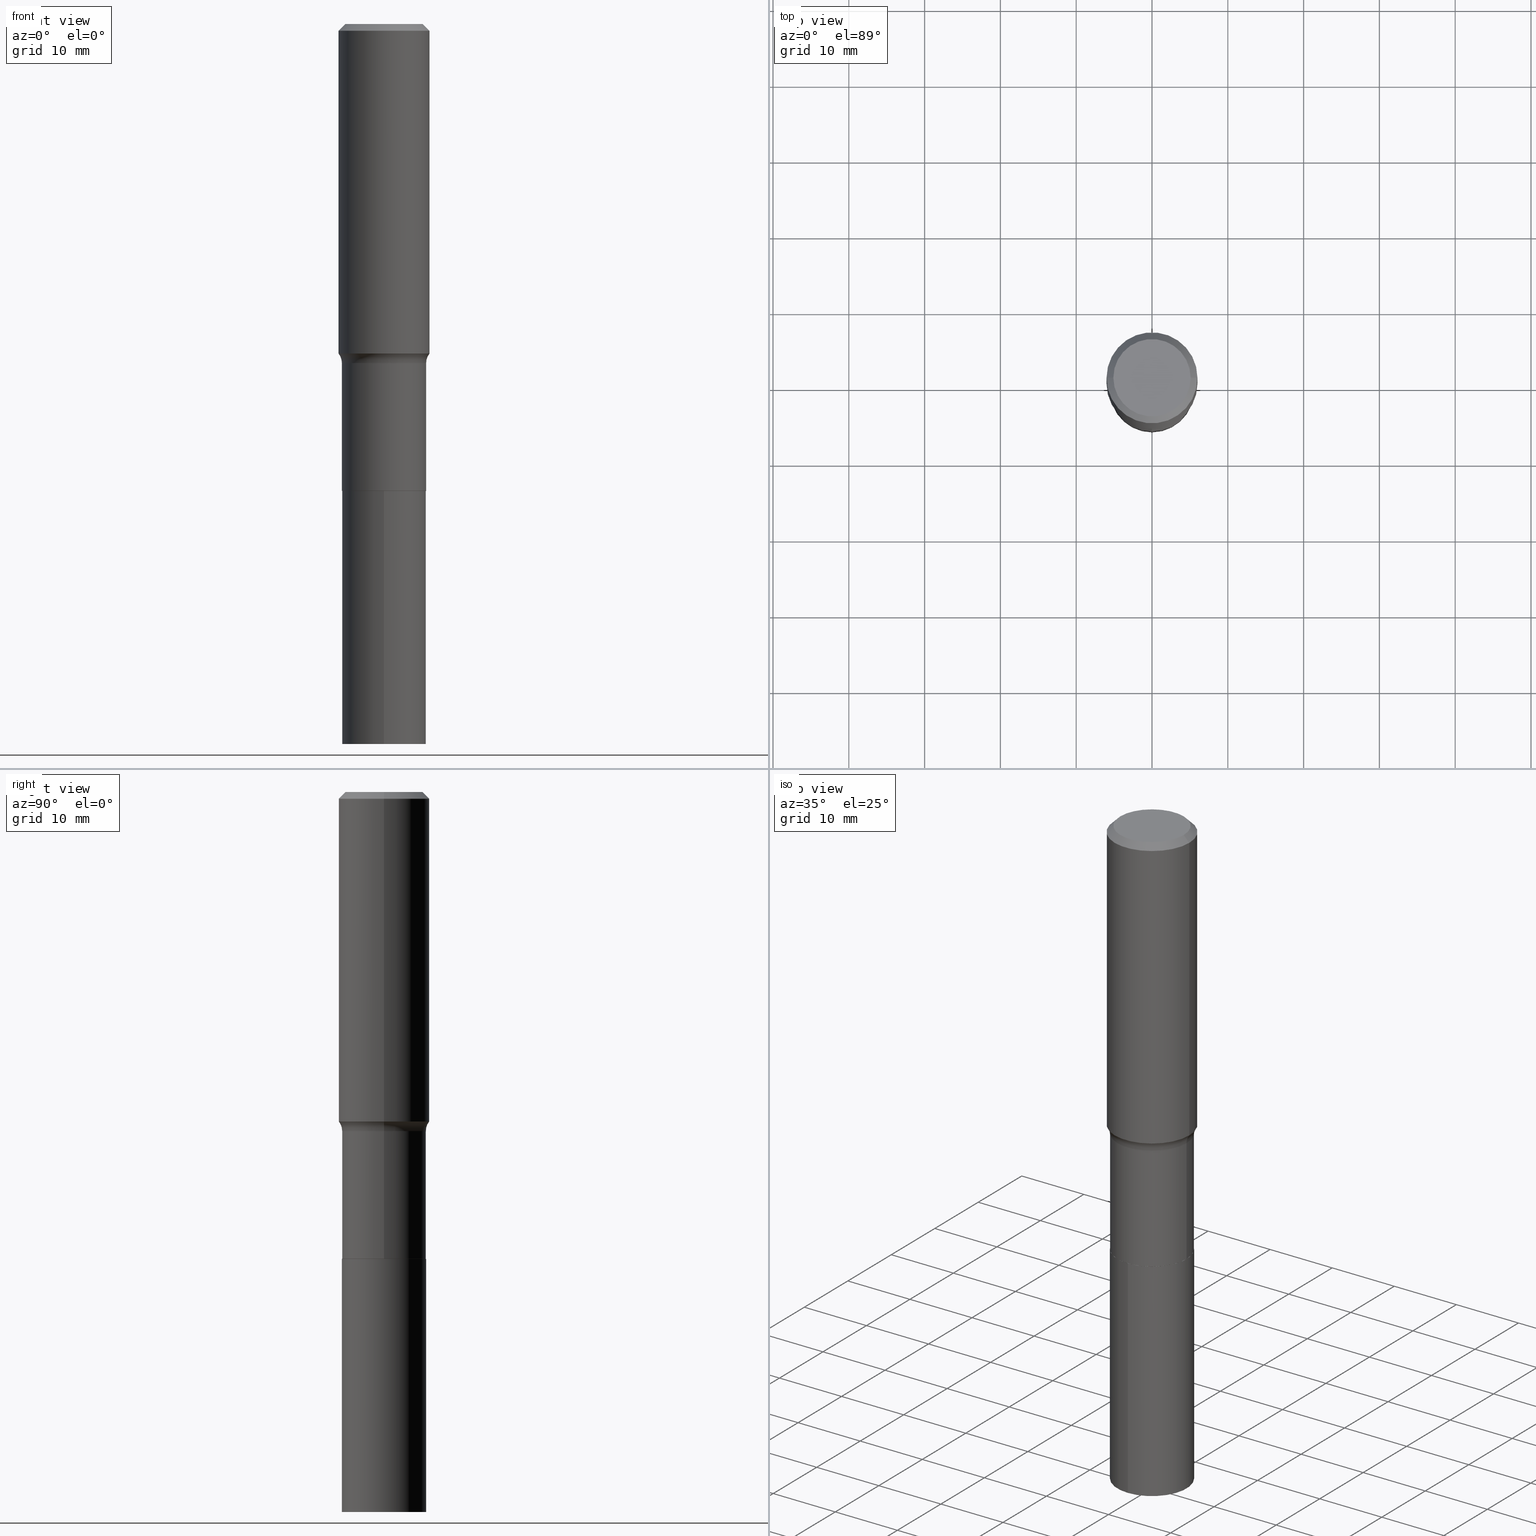
[diagram: canonical four-view strip — front | top / right | iso, engineering-drawing reading convention]
A machine part, canonical four-view strip (front | top / right | iso — engineering-drawing reading convention). The complete STEP part file that produces these views, byte-faithful:
ISO-10303-21;
HEADER;
FILE_DESCRIPTION (( 'STEP AP203' ),
    '1' );
FILE_NAME ('58841.STEP',
    '2024-04-19T14:44:43',
    ( '' ),
    ( '' ),
    'SwSTEP 2.0',
    'SolidWorks 2023',
    '' );
FILE_SCHEMA (( 'CONFIG_CONTROL_DESIGN' ));
ENDSEC;

DATA;
#1 = DIRECTION ( 'NONE',  ( -6.982962677686265922E-15, -1.000000000000000000, 3.491551947444624874E-15 ) ) ;
#2 = AXIS2_PLACEMENT_3D ( 'NONE', #101, #67, #145 ) ;
#3 = AXIS2_PLACEMENT_3D ( 'NONE', #266, #329, #264 ) ;
#4 = CARTESIAN_POINT ( 'NONE',  ( -0.2187500000000000278, 1.554312234475219354E-15, -1.076017050993260762E-29 ) ) ;
#5 = APPROVAL_PERSON_ORGANIZATION ( #61, #175, #429 ) ;
#6 = PRODUCT_RELATED_PRODUCT_CATEGORY ( 'detail', '', ( #165 ) ) ;
#7 = FACE_OUTER_BOUND ( 'NONE', #162, .T. ) ;
#8 = DATE_AND_TIME ( #14, #179 ) ;
#9 = CARTESIAN_POINT ( 'NONE',  ( 0.2187500000000000555, -9.993317888036847882E-15, -2.424700000000000522 ) ) ;
#10 = ORIENTED_EDGE ( 'NONE', *, *, #241, .T. ) ;
#11 = DIRECTION ( 'NONE',  ( -2.445468806185136597E-29, 3.491481338843145583E-15, 1.000000000000000000 ) ) ;
#12 = VECTOR ( 'NONE', #141, 39.37007874015748143 ) ;
#13 = DIRECTION ( 'NONE',  ( 1.000000000000000000, -6.982962677686266711E-15, 0.000000000000000000 ) ) ;
#14 = CALENDAR_DATE ( 2024, 19, 4 ) ;
#15 = ADVANCED_FACE ( 'NONE', ( #59 ), #364, .F. ) ;
#16 = DIRECTION ( 'NONE',  ( -2.445419500462251328E-29, 3.491551947444624874E-15, 1.000000000000000000 ) ) ;
#17 = DIRECTION ( 'NONE',  ( -1.000000000000000000, 7.105427357601001859E-15, 0.000000000000000000 ) ) ;
#18 = CIRCLE ( 'NONE', #52, 0.2361999999999999933 ) ;
#19 = CARTESIAN_POINT ( 'NONE',  ( 5.930750948760193592E-29, -8.467540542962398542E-15, -2.425200000000000244 ) ) ;
#20 = CC_DESIGN_PERSON_AND_ORGANIZATION_ASSIGNMENT ( #348, #181, ( #170 ) ) ;
#21 = ORIENTED_EDGE ( 'NONE', *, *, #251, .T. ) ;
#22 = ORIENTED_EDGE ( 'NONE', *, *, #218, .T. ) ;
#23 = ORIENTED_EDGE ( 'NONE', *, *, #276, .F. ) ;
#24 = VERTEX_POINT ( 'NONE', #403 ) ;
#25 = DIRECTION ( 'NONE',  ( -2.445468806185136597E-29, 3.491481338843145583E-15, 1.000000000000000000 ) ) ;
#26 = CYLINDRICAL_SURFACE ( 'NONE', #82, 0.2187500000000000278 ) ;
#27 = DIRECTION ( 'NONE',  ( 1.000000000000000000, -6.982962677686269077E-15, 0.000000000000000000 ) ) ;
#28 = AXIS2_PLACEMENT_3D ( 'NONE', #140, #285, #436 ) ;
#29 = FACE_OUTER_BOUND ( 'NONE', #387, .T. ) ;
#30 = CIRCLE ( 'NONE', #388, 0.2187500000000000000 ) ;
#31 = CARTESIAN_POINT ( 'NONE',  ( 0.2361999999999999933, -1.773078968304709711E-15, -0.03543000000000023908 ) ) ;
#32 = CARTESIAN_POINT ( 'NONE',  ( -0.2187499999999999445, -5.753881929924311929E-15, -1.761600000000000055 ) ) ;
#33 = PLANE ( 'NONE',  #129 ) ;
#34 = CARTESIAN_POINT ( 'NONE',  ( 5.930750948760194713E-29, -8.467540542962398542E-15, -2.425200000000000689 ) ) ;
#35 = CC_DESIGN_PERSON_AND_ORGANIZATION_ASSIGNMENT ( #150, #70, ( #417 ) ) ;
#36 = DIRECTION ( 'NONE',  ( -6.982962677686266711E-15, -1.000000000000000000, 3.491481338843145583E-15 ) ) ;
#37 = CLOSED_SHELL ( 'NONE', ( #369, #39, #292, #95 ) ) ;
#38 = AXIS2_PLACEMENT_3D ( 'NONE', #330, #189, #373 ) ;
#39 = ADVANCED_FACE ( 'NONE', ( #29 ), #112, .F. ) ;
#40 = CARTESIAN_POINT ( 'NONE',  ( 1.554312234475294098E-15, 0.2187499999999869549, -3.740199999999999747 ) ) ;
#41 = VERTEX_POINT ( 'NONE', #32 ) ;
#42 = DIRECTION ( 'NONE',  ( 1.000000000000000000, -6.982962677686262766E-15, 0.000000000000000000 ) ) ;
#43 = DIRECTION ( 'NONE',  ( 1.000000000000000000, -6.982962677686266711E-15, 4.876140833081945105E-29 ) ) ;
#44 = CIRCLE ( 'NONE', #287, 0.07999999999999996003 ) ;
#45 = ADVANCED_FACE ( 'NONE', ( #138 ), #134, .T. ) ;
#46 = CC_DESIGN_APPROVAL ( #175, ( #131 ) ) ;
#47 = DIRECTION ( 'NONE',  ( -6.982962677686265133E-15, -1.000000000000000000, 2.497689594207326371E-15 ) ) ;
#48 = CARTESIAN_POINT ( 'NONE',  ( -0.2987499999999999045, -4.027847103422786899E-15, -1.761600000000000055 ) ) ;
#49 = APPROVAL ( #394, 'UNSPECIFIED' ) ;
#50 = LINE ( 'NONE', #414, #448 ) ;
#51 = ORIENTED_EDGE ( 'NONE', *, *, #117, .F. ) ;
#52 = AXIS2_PLACEMENT_3D ( 'NONE', #410, #226, #13 ) ;
#53 = ORIENTED_EDGE ( 'NONE', *, *, #91, .T. ) ;
#54 = ORIENTED_EDGE ( 'NONE', *, *, #84, .F. ) ;
#55 = ORIENTED_EDGE ( 'NONE', *, *, #204, .F. ) ;
#56 = CIRCLE ( 'NONE', #239, 0.2007700000000000040 ) ;
#57 = CIRCLE ( 'NONE', #73, 0.2187499999999999445 ) ;
#58 = ORIENTED_EDGE ( 'NONE', *, *, #91, .F. ) ;
#59 = FACE_OUTER_BOUND ( 'NONE', #275, .T. ) ;
#60 = PERSON_AND_ORGANIZATION ( #94, #232 ) ;
#61 = PERSON_AND_ORGANIZATION ( #94, #232 ) ;
#62 = VERTEX_POINT ( 'NONE', #103 ) ;
#63 = DATE_AND_TIME ( #392, #164 ) ;
#64 = DIRECTION ( 'NONE',  ( 1.000000000000000000, -6.982962677686266711E-15, 0.000000000000000000 ) ) ;
#65 = AXIS2_PLACEMENT_3D ( 'NONE', #445, #153, #372 ) ;
#66 = CARTESIAN_POINT ( 'NONE',  ( 0.000000000000000000, 0.000000000000000000, 0.000000000000000000 ) ) ;
#67 = DIRECTION ( 'NONE',  ( -2.445468806185136597E-29, 3.491481338843145583E-15, 1.000000000000000000 ) ) ;
#68 = DIRECTION ( 'NONE',  ( 0.7071067811865451302, -7.319954787623248157E-15, -0.7071067811865499042 ) ) ;
#69 = VERTEX_POINT ( 'NONE', #391 ) ;
#70 = PERSON_AND_ORGANIZATION_ROLE ( 'creator' ) ;
#71 = EDGE_CURVE ( 'NONE', #456, #421, #56, .T. ) ;
#72 = CARTESIAN_POINT ( 'NONE',  ( -0.2362000000000001043, 1.678301941865357380E-15, -1.161852468318209317E-29 ) ) ;
#73 = AXIS2_PLACEMENT_3D ( 'NONE', #444, #122, #79 ) ;
#74 = ORIENTED_EDGE ( 'NONE', *, *, #413, .F. ) ;
#75 = DIRECTION ( 'NONE',  ( -2.445468806185136597E-29, 3.491481338843145583E-15, 1.000000000000000000 ) ) ;
#76 = EDGE_LOOP ( 'NONE', ( #460, #202 ) ) ;
#77 = CARTESIAN_POINT ( 'NONE',  ( 1.554312234475310270E-15, 0.2187499999999915068, -2.425200000000001577 ) ) ;
#78 = PRODUCT_DEFINITION_SHAPE ( 'NONE', 'NONE',  #417 ) ;
#79 = DIRECTION ( 'NONE',  ( 1.000000000000000000, -6.982962677686269077E-15, 0.000000000000000000 ) ) ;
#80 = MANIFOLD_SOLID_BREP ( 'Body-Move/Copy2[1]', #37 ) ;
#81 = CLOSED_SHELL ( 'NONE', ( #195, #420, #263, #15, #389, #45, #151, #336, #458, #86, #137, #298 ) ) ;
#82 = AXIS2_PLACEMENT_3D ( 'NONE', #350, #139, #316 ) ;
#83 = DIRECTION ( 'NONE',  ( -6.982962677686265133E-15, -1.000000000000000000, 3.746534391310989557E-15 ) ) ;
#84 = EDGE_CURVE ( 'NONE', #456, #339, #432, .T. ) ;
#85 = APPROVAL_ROLE ( '' ) ;
#86 = ADVANCED_FACE ( 'NONE', ( #220 ), #321, .F. ) ;
#87 = CARTESIAN_POINT ( 'NONE',  ( 1.554312234475278124E-15, 0.2187499999999915068, -2.425200000000001133 ) ) ;
#88 = ORIENTED_EDGE ( 'NONE', *, *, #184, .F. ) ;
#89 = EDGE_CURVE ( 'NONE', #214, #169, #319, .T. ) ;
#90 = ORIENTED_EDGE ( 'NONE', *, *, #204, .T. ) ;
#91 = EDGE_CURVE ( 'NONE', #41, #69, #154, .T. ) ;
#92 = AXIS2_PLACEMENT_3D ( 'NONE', #320, #111, #186 ) ;
#93 = ORIENTED_EDGE ( 'NONE', *, *, #184, .T. ) ;
#94 = PERSON ( 'UNSPECIFIED', 'UNSPECIFIED', 'UNSPECIFIED', ('UNSPECIFIED'), ('UNSPECIFIED'), ('UNSPECIFIED') ) ;
#95 = ADVANCED_FACE ( 'NONE', ( #178 ), #110, .F. ) ;
#96 = EDGE_LOOP ( 'NONE', ( #74, #424, #228, #21 ) ) ;
#97 = COORDINATED_UNIVERSAL_TIME_OFFSET ( 5, 0, .BEHIND. ) ;
#98 = ORIENTED_EDGE ( 'NONE', *, *, #126, .F. ) ;
#99 = CIRCLE ( 'NONE', #216, 0.2362000000000002153 ) ;
#100 = CIRCLE ( 'NONE', #341, 0.07999999999999996003 ) ;
#101 = CARTESIAN_POINT ( 'NONE',  ( 4.307937848975737218E-29, -6.150593526506085920E-15, -1.761600000000000055 ) ) ;
#102 =( NAMED_UNIT ( * ) SI_UNIT ( $, .STERADIAN. ) SOLID_ANGLE_UNIT ( ) );
#103 = CARTESIAN_POINT ( 'NONE',  ( -0.2187500000000000555, -5.753881929924311140E-15, -2.424700000000000522 ) ) ;
#104 = APPLICATION_PROTOCOL_DEFINITION ( 'international standard', 'config_control_design', 1994, #343 ) ;
#105 = DIRECTION ( 'NONE',  ( 6.982962677686265922E-15, 1.000000000000000000, -3.491551947444624874E-15 ) ) ;
#106 = CARTESIAN_POINT ( 'NONE',  ( 0.2362000000000001043, -1.649375784469496920E-15, 1.151752954443000508E-29 ) ) ;
#107 = AXIS2_PLACEMENT_3D ( 'NONE', #118, #337, #156 ) ;
#108 = CC_DESIGN_DATE_AND_TIME_ASSIGNMENT ( #207, #351, ( #131 ) ) ;
#109 = APPROVAL_DATE_TIME ( #466, #175 ) ;
#110 = PLANE ( 'NONE',  #301 ) ;
#111 = DIRECTION ( 'NONE',  ( 2.445468806185136597E-29, -3.491481338843145583E-15, -1.000000000000000000 ) ) ;
#112 = PLANE ( 'NONE',  #397 ) ;
#113 = DIRECTION ( 'NONE',  ( 2.445468806185136597E-29, -3.491481338843145583E-15, -1.000000000000000000 ) ) ;
#114 = DIRECTION ( 'NONE',  ( -2.445419500462251328E-29, 3.491551947444624874E-15, 1.000000000000000000 ) ) ;
#115 = CARTESIAN_POINT ( 'NONE',  ( -1.001697619218023151E-46, 1.430158722866391908E-32, 4.096137381448114529E-18 ) ) ;
#116 = AXIS2_PLACEMENT_3D ( 'NONE', #278, #25, #439 ) ;
#117 = EDGE_CURVE ( 'NONE', #24, #368, #99, .T. ) ;
#118 = CARTESIAN_POINT ( 'NONE',  ( 9.146477591868052127E-29, -1.305893135385207557E-14, -3.740199999999998859 ) ) ;
#119 = EDGE_CURVE ( 'NONE', #384, #339, #163, .T. ) ;
#120 = DIRECTION ( 'NONE',  ( 1.000000000000000000, -6.982962677686270655E-15, 0.000000000000000000 ) ) ;
#121 = APPROVAL_DATE_TIME ( #8, #49 ) ;
#122 = DIRECTION ( 'NONE',  ( -2.445468806185136597E-29, 3.491481338843145583E-15, 1.000000000000000000 ) ) ;
#123 = FACE_OUTER_BOUND ( 'NONE', #377, .T. ) ;
#124 = ORIENTED_EDGE ( 'NONE', *, *, #126, .T. ) ;
#125 = DIRECTION ( 'NONE',  ( 1.000000000000000000, -6.982962677686266711E-15, 4.876176775795935793E-29 ) ) ;
#126 = EDGE_CURVE ( 'NONE', #132, #167, #378, .T. ) ;
#127 = ORIENTED_EDGE ( 'NONE', *, *, #119, .T. ) ;
#128 = EDGE_LOOP ( 'NONE', ( #277, #133, #98, #88 ) ) ;
#129 = AXIS2_PLACEMENT_3D ( 'NONE', #185, #325, #176 ) ;
#130 = CC_DESIGN_DATE_AND_TIME_ASSIGNMENT ( #237, #380, ( #417 ) ) ;
#131 = SECURITY_CLASSIFICATION ( '', '', #322 ) ;
#132 = VERTEX_POINT ( 'NONE', #256 ) ;
#133 = ORIENTED_EDGE ( 'NONE', *, *, #361, .T. ) ;
#134 = CYLINDRICAL_SURFACE ( 'NONE', #385, 0.2187500000000000278 ) ;
#135 = AXIS2_PLACEMENT_3D ( 'NONE', #449, #302, #160 ) ;
#136 = EDGE_LOOP ( 'NONE', ( #152, #243, #454, #315 ) ) ;
#137 = ADVANCED_FACE ( 'NONE', ( #362 ), #33, .F. ) ;
#138 = FACE_OUTER_BOUND ( 'NONE', #313, .T. ) ;
#139 = DIRECTION ( 'NONE',  ( -2.445468806185136597E-29, 3.491481338843145583E-15, 1.000000000000000000 ) ) ;
#140 = CARTESIAN_POINT ( 'NONE',  ( 5.930750948760194713E-29, -8.467540542962398542E-15, -2.425200000000000689 ) ) ;
#141 = DIRECTION ( 'NONE',  ( -2.445468806185136877E-29, 3.491481338843145188E-15, 1.000000000000000000 ) ) ;
#142 = MANIFOLD_SOLID_BREP ( 'Body-Move/Copy2[2]', #81 ) ;
#143 = EDGE_CURVE ( 'NONE', #62, #305, #396, .T. ) ;
#144 = AXIS2_PLACEMENT_3D ( 'NONE', #402, #113, #357 ) ;
#145 = DIRECTION ( 'NONE',  ( 1.000000000000000000, -6.982962677686266711E-15, 4.883557194083112901E-29 ) ) ;
#146 = DIRECTION ( 'NONE',  ( -2.445468806185136877E-29, 3.491481338843145188E-15, 1.000000000000000000 ) ) ;
#147 = DIRECTION ( 'NONE',  ( -2.445468806185136597E-29, 3.491481338843145583E-15, 1.000000000000000000 ) ) ;
#148 = COORDINATED_UNIVERSAL_TIME_OFFSET ( 5, 0, .BEHIND. ) ;
#149 = FACE_OUTER_BOUND ( 'NONE', #136, .T. ) ;
#150 = PERSON_AND_ORGANIZATION ( #94, #232 ) ;
#151 = ADVANCED_FACE ( 'NONE', ( #196 ), #155, .F. ) ;
#152 = ORIENTED_EDGE ( 'NONE', *, *, #311, .T. ) ;
#153 = DIRECTION ( 'NONE',  ( -2.445468806185136597E-29, 3.491481338843145583E-15, 1.000000000000000000 ) ) ;
#154 = CIRCLE ( 'NONE', #447, 0.2187499999999999445 ) ;
#155 = TOROIDAL_SURFACE ( 'NONE', #38, 0.2987499999999999045, 0.08000000000000000167 ) ;
#156 = DIRECTION ( 'NONE',  ( -6.982962677686265133E-15, -1.000000000000000000, 2.497689594207326371E-15 ) ) ;
#157 = EDGE_CURVE ( 'NONE', #421, #456, #310, .T. ) ;
#158 = LINE ( 'NONE', #328, #455 ) ;
#159 = EDGE_CURVE ( 'NONE', #305, #62, #365, .T. ) ;
#160 = DIRECTION ( 'NONE',  ( 1.000000000000000000, -6.982962677686264344E-15, 0.000000000000000000 ) ) ;
#161 = CALENDAR_DATE ( 2024, 19, 4 ) ;
#162 = EDGE_LOOP ( 'NONE', ( #451, #342, #10, #408 ) ) ;
#163 = CIRCLE ( 'NONE', #331, 0.2361999999999999933 ) ;
#164 = LOCAL_TIME ( 10, 44, 43.00000000000000000, #97 ) ;
#165 = PRODUCT ( '58841', '58841', '', ( #360 ) ) ;
#166 = DIRECTION ( 'NONE',  ( -2.445419500462251328E-29, 3.491551947444624874E-15, 1.000000000000000000 ) ) ;
#167 = VERTEX_POINT ( 'NONE', #77 ) ;
#168 = EDGE_LOOP ( 'NONE', ( #236, #271 ) ) ;
#169 = VERTEX_POINT ( 'NONE', #190 ) ;
#170 = PRODUCT_DEFINITION_FORMATION_WITH_SPECIFIED_SOURCE ( 'ANY', '', #165, .NOT_KNOWN. ) ;
#171 = UNCERTAINTY_MEASURE_WITH_UNIT (LENGTH_MEASURE( 1.000000000000000082E-05 ), #427, 'distance_accuracy_value', 'NONE');
#172 = COORDINATED_UNIVERSAL_TIME_OFFSET ( 5, 0, .BEHIND. ) ;
#173 = ORIENTED_EDGE ( 'NONE', *, *, #259, .F. ) ;
#174 = DIMENSIONAL_EXPONENTS ( 1.000000000000000000, 0.000000000000000000, 0.000000000000000000, 0.000000000000000000, 0.000000000000000000, 0.000000000000000000, 0.000000000000000000 ) ;
#175 = APPROVAL ( #281, 'UNSPECIFIED' ) ;
#176 = DIRECTION ( 'NONE',  ( 1.000000000000000000, -6.982962677686265922E-15, 4.876176775795935793E-29 ) ) ;
#177 = DIRECTION ( 'NONE',  ( -2.445419500462251328E-29, 3.491551947444624874E-15, 1.000000000000000000 ) ) ;
#178 = FACE_OUTER_BOUND ( 'NONE', #198, .T. ) ;
#179 = LOCAL_TIME ( 10, 44, 43.00000000000000000, #148 ) ;
#180 = DIRECTION ( 'NONE',  ( 1.000000000000000000, -6.982962677686266711E-15, 0.000000000000000000 ) ) ;
#181 = PERSON_AND_ORGANIZATION_ROLE ( 'design_supplier' ) ;
#182 = DIRECTION ( 'NONE',  ( -2.445468806185136597E-29, 3.491481338843145583E-15, 1.000000000000000000 ) ) ;
#183 = CARTESIAN_POINT ( 'NONE',  ( 0.2361999999999999933, -1.744152810908849251E-15, -0.03543000000000023908 ) ) ;
#184 = EDGE_CURVE ( 'NONE', #442, #132, #295, .T. ) ;
#185 = CARTESIAN_POINT ( 'NONE',  ( 5.930750948760194713E-29, -8.467540542962398542E-15, -2.425200000000000689 ) ) ;
#186 = DIRECTION ( 'NONE',  ( -1.000000000000000000, 6.982962677686266711E-15, 0.000000000000000000 ) ) ;
#187 = VECTOR ( 'NONE', #289, 39.37007874015748143 ) ;
#188 = CONICAL_SURFACE ( 'NONE', #92, 0.2361999999999999933, 0.7853981633974449483 ) ;
#189 = DIRECTION ( 'NONE',  ( -2.445468806185136597E-29, 3.491481338843145583E-15, 1.000000000000000000 ) ) ;
#190 = CARTESIAN_POINT ( 'NONE',  ( 0.2182499999999999996, -9.991572147367425589E-15, -2.425200000000000689 ) ) ;
#191 = CARTESIAN_POINT ( 'NONE',  ( -1.527523085743811284E-15, -0.2187500000000084655, -2.425199999999999800 ) ) ;
#192 = FACE_OUTER_BOUND ( 'NONE', #200, .T. ) ;
#193 = VECTOR ( 'NONE', #412, 39.37007874015748143 ) ;
#194 = CC_DESIGN_SECURITY_CLASSIFICATION ( #131, ( #170 ) ) ;
#195 = ADVANCED_FACE ( 'NONE', ( #149 ), #398, .T. ) ;
#196 = FACE_OUTER_BOUND ( 'NONE', #238, .T. ) ;
#197 = FACE_OUTER_BOUND ( 'NONE', #128, .T. ) ;
#198 = EDGE_LOOP ( 'NONE', ( #124, #405 ) ) ;
#199 = LINE ( 'NONE', #87, #206 ) ;
#200 = EDGE_LOOP ( 'NONE', ( #383, #453, #93, #303 ) ) ;
#201 = APPROVAL ( #312, 'UNSPECIFIED' ) ;
#202 = ORIENTED_EDGE ( 'NONE', *, *, #89, .F. ) ;
#203 = ORIENTED_EDGE ( 'NONE', *, *, #428, .T. ) ;
#204 = EDGE_CURVE ( 'NONE', #368, #339, #293, .T. ) ;
#205 = EDGE_LOOP ( 'NONE', ( #416, #371, #173, #345 ) ) ;
#206 = VECTOR ( 'NONE', #235, 39.37007874015748143 ) ;
#207 = DATE_AND_TIME ( #314, #463 ) ;
#208 = ORIENTED_EDGE ( 'NONE', *, *, #375, .T. ) ;
#209 = EDGE_CURVE ( 'NONE', #442, #244, #411, .T. ) ;
#210 = EDGE_CURVE ( 'NONE', #24, #69, #100, .T. ) ;
#211 = CALENDAR_DATE ( 2024, 19, 4 ) ;
#212 = CARTESIAN_POINT ( 'NONE',  ( -1.001697619218023151E-46, 1.430158722866391908E-32, 4.096137381448114529E-18 ) ) ;
#213 = DIRECTION ( 'NONE',  ( 0.000000000000000000, 0.000000000000000000, 1.000000000000000000 ) ) ;
#214 = VERTEX_POINT ( 'NONE', #443 ) ;
#215 =( LENGTH_UNIT ( ) NAMED_UNIT ( * ) SI_UNIT ( $, .METRE. ) );
#216 = AXIS2_PLACEMENT_3D ( 'NONE', #465, #252, #64 ) ;
#217 = DIRECTION ( 'NONE',  ( -2.445468806185136597E-29, 3.491481338843145583E-15, 1.000000000000000000 ) ) ;
#218 = EDGE_CURVE ( 'NONE', #305, #69, #158, .T. ) ;
#219 = APPLICATION_PROTOCOL_DEFINITION ( 'international standard', 'config_control_design', 1994, #426 ) ;
#220 = FACE_OUTER_BOUND ( 'NONE', #168, .T. ) ;
#221 = CARTESIAN_POINT ( 'NONE',  ( 8.664295980313996991E-31, -1.237031838352134818E-16, -0.03543000000000023908 ) ) ;
#222 = CC_DESIGN_PERSON_AND_ORGANIZATION_ASSIGNMENT ( #435, #390, ( #170 ) ) ;
#223 = VECTOR ( 'NONE', #114, 39.37007874015748143 ) ;
#224 = DIRECTION ( 'NONE',  ( -2.445419500462251328E-29, 3.491551947444624874E-15, 1.000000000000000000 ) ) ;
#225 = ORIENTED_EDGE ( 'NONE', *, *, #428, .F. ) ;
#226 = DIRECTION ( 'NONE',  ( -2.445468806185136597E-29, 3.491481338843145583E-15, 1.000000000000000000 ) ) ;
#227 = APPROVAL_ROLE ( '' ) ;
#228 = ORIENTED_EDGE ( 'NONE', *, *, #84, .T. ) ;
#229 = CARTESIAN_POINT ( 'NONE',  ( 0.2182499999999999996, -9.991572147367425589E-15, -2.425200000000000689 ) ) ;
#230 = CYLINDRICAL_SURFACE ( 'NONE', #3, 0.2362000000000001043 ) ;
#231 = CONICAL_SURFACE ( 'NONE', #144, 0.2361999999999999933, 0.7853981633974449483 ) ;
#232 = ORGANIZATION ( 'UNSPECIFIED', 'UNSPECIFIED', '' ) ;
#233 = CYLINDRICAL_SURFACE ( 'NONE', #332, 0.2187500000000000000 ) ;
#234 = ORIENTED_EDGE ( 'NONE', *, *, #210, .T. ) ;
#235 = DIRECTION ( 'NONE',  ( -2.445419500462251328E-29, 3.491551947444624874E-15, 1.000000000000000000 ) ) ;
#236 = ORIENTED_EDGE ( 'NONE', *, *, #71, .T. ) ;
#237 = DATE_AND_TIME ( #161, #288 ) ;
#238 = EDGE_LOOP ( 'NONE', ( #422, #51, #234, #335 ) ) ;
#239 = AXIS2_PLACEMENT_3D ( 'NONE', #212, #182, #359 ) ;
#240 = AXIS2_PLACEMENT_3D ( 'NONE', #370, #75, #407 ) ;
#241 = EDGE_CURVE ( 'NONE', #169, #305, #446, .T. ) ;
#242 = ORIENTED_EDGE ( 'NONE', *, *, #434, .F. ) ;
#243 = ORIENTED_EDGE ( 'NONE', *, *, #306, .T. ) ;
#244 = VERTEX_POINT ( 'NONE', #40 ) ;
#245 = CIRCLE ( 'NONE', #135, 0.2182499999999999996 ) ;
#246 = CARTESIAN_POINT ( 'NONE',  ( 0.000000000000000000, 0.000000000000000000, 0.000000000000000000 ) ) ;
#247 = LINE ( 'NONE', #183, #294 ) ;
#248 = COORDINATED_UNIVERSAL_TIME_OFFSET ( 5, 0, .BEHIND. ) ;
#249 = DIRECTION ( 'NONE',  ( 2.438088387897960049E-29, -3.491481338843145188E-15, -1.000000000000000000 ) ) ;
#250 = PERSON_AND_ORGANIZATION ( #94, #232 ) ;
#251 = EDGE_CURVE ( 'NONE', #339, #384, #18, .T. ) ;
#252 = DIRECTION ( 'NONE',  ( -2.445468806185136597E-29, 3.491481338843145583E-15, 1.000000000000000000 ) ) ;
#253 = AXIS2_PLACEMENT_3D ( 'NONE', #268, #452, #125 ) ;
#254 = CC_DESIGN_APPROVAL ( #49, ( #417 ) ) ;
#255 = CC_DESIGN_APPROVAL ( #201, ( #170 ) ) ;
#256 = CARTESIAN_POINT ( 'NONE',  ( -1.527523085743811284E-15, -0.2187500000000084655, -2.425199999999999800 ) ) ;
#257 = DIRECTION ( 'NONE',  ( -2.445468806185136597E-29, 3.491481338843145583E-15, 1.000000000000000000 ) ) ;
#258 = DIRECTION ( 'NONE',  ( 1.000000000000000000, -6.982962677686266711E-15, 0.000000000000000000 ) ) ;
#259 = EDGE_CURVE ( 'NONE', #69, #41, #57, .T. ) ;
#260 = CARTESIAN_POINT ( 'NONE',  ( 9.146477591868052127E-29, -1.305893135385207557E-14, -3.740199999999998859 ) ) ;
#261 = VECTOR ( 'NONE', #265, 39.37007874015748143 ) ;
#262 = CARTESIAN_POINT ( 'NONE',  ( 5.929528214357101912E-29, -8.465794802292976250E-15, -2.424700000000000522 ) ) ;
#263 = ADVANCED_FACE ( 'NONE', ( #409 ), #230, .T. ) ;
#264 = DIRECTION ( 'NONE',  ( 1.000000000000000000, -6.982962677686266711E-15, 4.876176775795935793E-29 ) ) ;
#265 = DIRECTION ( 'NONE',  ( 0.7071067811864750752, -2.468850131081498176E-15, 0.7071067811866199593 ) ) ;
#266 = CARTESIAN_POINT ( 'NONE',  ( 0.000000000000000000, 0.000000000000000000, 0.000000000000000000 ) ) ;
#267 = AXIS2_PLACEMENT_3D ( 'NONE', #260, #224, #47 ) ;
#268 = CARTESIAN_POINT ( 'NONE',  ( 0.000000000000000000, 0.000000000000000000, 0.000000000000000000 ) ) ;
#269 = EDGE_LOOP ( 'NONE', ( #307, #462, #127, #54 ) ) ;
#270 = CYLINDRICAL_SURFACE ( 'NONE', #253, 0.2362000000000001043 ) ;
#271 = ORIENTED_EDGE ( 'NONE', *, *, #157, .T. ) ;
#272 = ORIENTED_EDGE ( 'NONE', *, *, #209, .F. ) ;
#273 = AXIS2_PLACEMENT_3D ( 'NONE', #299, #16, #83 ) ;
#274 =( GEOMETRIC_REPRESENTATION_CONTEXT ( 3 ) GLOBAL_UNCERTAINTY_ASSIGNED_CONTEXT ( ( #171 ) ) GLOBAL_UNIT_ASSIGNED_CONTEXT ( ( #427, #279, #102 ) ) REPRESENTATION_CONTEXT ( 'NONE', 'WORKASPACE' ) );
#275 = EDGE_LOOP ( 'NONE', ( #225, #208, #53, #457 ) ) ;
#276 = EDGE_CURVE ( 'NONE', #244, #442, #327, .T. ) ;
#277 = ORIENTED_EDGE ( 'NONE', *, *, #209, .T. ) ;
#278 = CARTESIAN_POINT ( 'NONE',  ( 5.930750948760194713E-29, -8.467540542962398542E-15, -2.425200000000000689 ) ) ;
#279 =( NAMED_UNIT ( * ) PLANE_ANGLE_UNIT ( ) SI_UNIT ( $, .RADIAN. ) );
#280 = AXIS2_PLACEMENT_3D ( 'NONE', #115, #441, #43 ) ;
#281 = APPROVAL_STATUS ( 'not_yet_approved' ) ;
#282 = DIRECTION ( 'NONE',  ( -2.445468806185136597E-29, 3.491481338843145583E-15, 1.000000000000000000 ) ) ;
#283 = PERSON_AND_ORGANIZATION_ROLE ( 'design_owner' ) ;
#284 = CARTESIAN_POINT ( 'NONE',  ( 3.815822158491619297E-29, -1.149623894489820165E-14, -2.425200000000000689 ) ) ;
#285 = DIRECTION ( 'NONE',  ( -2.445419500462251328E-29, 3.491551947444624874E-15, 1.000000000000000000 ) ) ;
#286 = LENGTH_MEASURE_WITH_UNIT ( LENGTH_MEASURE( 0.02539999999999999897 ), #215 );
#287 = AXIS2_PLACEMENT_3D ( 'NONE', #48, #338, #17 ) ;
#288 = LOCAL_TIME ( 10, 44, 43.00000000000000000, #172 ) ;
#289 = DIRECTION ( 'NONE',  ( -0.7071067811865451302, 2.468850131082231817E-15, -0.7071067811865499042 ) ) ;
#290 = DIRECTION ( 'NONE',  ( -6.982962677686265133E-15, -1.000000000000000000, 3.746534391310989557E-15 ) ) ;
#291 = DIRECTION ( 'NONE',  ( 1.000000000000000000, -6.982962677686264344E-15, 0.000000000000000000 ) ) ;
#292 = ADVANCED_FACE ( 'NONE', ( #192 ), #333, .T. ) ;
#293 = LINE ( 'NONE', #72, #193 ) ;
#294 = VECTOR ( 'NONE', #68, 39.37007874015748143 ) ;
#295 = LINE ( 'NONE', #191, #223 ) ;
#296 = APPROVAL_PERSON_ORGANIZATION ( #250, #49, #227 ) ;
#297 = CC_DESIGN_PERSON_AND_ORGANIZATION_ASSIGNMENT ( #60, #283, ( #165 ) ) ;
#298 = ADVANCED_FACE ( 'NONE', ( #7 ), #418, .T. ) ;
#299 = CARTESIAN_POINT ( 'NONE',  ( 5.930750948760193592E-29, -8.467540542962398542E-15, -2.425200000000000244 ) ) ;
#300 = CARTESIAN_POINT ( 'NONE',  ( 0.2987499999999999045, -8.236753626464857627E-15, -1.761600000000000055 ) ) ;
#301 = AXIS2_PLACEMENT_3D ( 'NONE', #284, #323, #105 ) ;
#302 = DIRECTION ( 'NONE',  ( -2.445468806185136597E-29, 3.491481338843145583E-15, 1.000000000000000000 ) ) ;
#303 = ORIENTED_EDGE ( 'NONE', *, *, #401, .F. ) ;
#304 = DIRECTION ( 'NONE',  ( -0.7071067811864750752, 7.493145998870092258E-15, 0.7071067811866199593 ) ) ;
#305 = VERTEX_POINT ( 'NONE', #9 ) ;
#306 = EDGE_CURVE ( 'NONE', #214, #62, #50, .T. ) ;
#307 = ORIENTED_EDGE ( 'NONE', *, *, #157, .F. ) ;
#308 = ADVANCED_BREP_SHAPE_REPRESENTATION ( '58841', ( #80, #142, #399 ), #274 ) ;
#309 = EDGE_LOOP ( 'NONE', ( #346, #90, #419, #381 ) ) ;
#310 = CIRCLE ( 'NONE', #280, 0.2007700000000000040 ) ;
#311 = EDGE_CURVE ( 'NONE', #169, #214, #245, .T. ) ;
#312 = APPROVAL_STATUS ( 'not_yet_approved' ) ;
#313 = EDGE_LOOP ( 'NONE', ( #242, #347, #22, #58 ) ) ;
#314 = CALENDAR_DATE ( 2024, 19, 4 ) ;
#315 = ORIENTED_EDGE ( 'NONE', *, *, #241, .F. ) ;
#316 = DIRECTION ( 'NONE',  ( 1.000000000000000000, -6.982962677686266711E-15, 4.876176775795935232E-29 ) ) ;
#317 = COORDINATED_UNIVERSAL_TIME_OFFSET ( 5, 0, .BEHIND. ) ;
#318 = DIRECTION ( 'NONE',  ( 1.000000000000000000, -6.982962677686266711E-15, 4.876176775795935232E-29 ) ) ;
#319 = CIRCLE ( 'NONE', #116, 0.2182499999999999996 ) ;
#320 = CARTESIAN_POINT ( 'NONE',  ( 8.664295980313996991E-31, -1.237031838352134818E-16, -0.03543000000000023908 ) ) ;
#321 = PLANE ( 'NONE',  #356 ) ;
#322 = SECURITY_CLASSIFICATION_LEVEL ( 'unclassified' ) ;
#323 = DIRECTION ( 'NONE',  ( 2.445419500462251047E-29, -3.491551947444624874E-15, -1.000000000000000000 ) ) ;
#324 = CARTESIAN_POINT ( 'NONE',  ( -1.527523085743778941E-15, -0.2187500000000130451, -3.740199999999998415 ) ) ;
#325 = DIRECTION ( 'NONE',  ( -2.438088387897960049E-29, 3.491481338843145188E-15, 1.000000000000000000 ) ) ;
#326 = CARTESIAN_POINT ( 'NONE',  ( 0.2007700000000000040, -1.560767496960719869E-15, 4.096137381458473721E-18 ) ) ;
#327 = CIRCLE ( 'NONE', #107, 0.2187500000000000000 ) ;
#328 = CARTESIAN_POINT ( 'NONE',  ( 0.2187500000000000278, -1.527523085743871040E-15, 1.066663669705361025E-29 ) ) ;
#329 = DIRECTION ( 'NONE',  ( -2.445468806185136597E-29, 3.491481338843145583E-15, 1.000000000000000000 ) ) ;
#330 = CARTESIAN_POINT ( 'NONE',  ( 4.307937848975737218E-29, -6.150593526506085920E-15, -1.761600000000000055 ) ) ;
#331 = AXIS2_PLACEMENT_3D ( 'NONE', #221, #217, #258 ) ;
#332 = AXIS2_PLACEMENT_3D ( 'NONE', #19, #166, #374 ) ;
#333 = CYLINDRICAL_SURFACE ( 'NONE', #273, 0.2187500000000000000 ) ;
#334 = APPROVAL_PERSON_ORGANIZATION ( #344, #201, #85 ) ;
#335 = ORIENTED_EDGE ( 'NONE', *, *, #259, .T. ) ;
#336 = ADVANCED_FACE ( 'NONE', ( #123 ), #270, .T. ) ;
#337 = DIRECTION ( 'NONE',  ( -2.445419500462251328E-29, 3.491551947444624874E-15, 1.000000000000000000 ) ) ;
#338 = DIRECTION ( 'NONE',  ( 7.105427357601001859E-15, 1.000000000000000000, -3.491481338843145583E-15 ) ) ;
#339 = VERTEX_POINT ( 'NONE', #340 ) ;
#340 = CARTESIAN_POINT ( 'NONE',  ( -0.2361999999999999933, -1.371777914626985896E-15, -0.03543000000000023908 ) ) ;
#341 = AXIS2_PLACEMENT_3D ( 'NONE', #300, #36, #42 ) ;
#342 = ORIENTED_EDGE ( 'NONE', *, *, #89, .T. ) ;
#343 = APPLICATION_CONTEXT ( 'configuration controlled 3d designs of mechanical parts and assemblies' ) ;
#344 = PERSON_AND_ORGANIZATION ( #94, #232 ) ;
#345 = ORIENTED_EDGE ( 'NONE', *, *, #218, .F. ) ;
#346 = ORIENTED_EDGE ( 'NONE', *, *, #117, .T. ) ;
#347 = ORIENTED_EDGE ( 'NONE', *, *, #143, .T. ) ;
#348 = PERSON_AND_ORGANIZATION ( #94, #232 ) ;
#349 = ORIENTED_EDGE ( 'NONE', *, *, #382, .T. ) ;
#350 = CARTESIAN_POINT ( 'NONE',  ( 0.000000000000000000, 0.000000000000000000, 0.000000000000000000 ) ) ;
#351 = DATE_TIME_ROLE ( 'classification_date' ) ;
#352 = CARTESIAN_POINT ( 'NONE',  ( 4.307937848975737218E-29, -6.150593526506085920E-15, -1.761600000000000055 ) ) ;
#353 = DIRECTION ( 'NONE',  ( 1.000000000000000000, 0.000000000000000000, 0.000000000000000000 ) ) ;
#354 = PERSON_AND_ORGANIZATION ( #94, #232 ) ;
#355 = DIRECTION ( 'NONE',  ( -2.445419500462251047E-29, 3.491551947444624874E-15, 1.000000000000000000 ) ) ;
#356 = AXIS2_PLACEMENT_3D ( 'NONE', #467, #249, #400 ) ;
#357 = DIRECTION ( 'NONE',  ( -1.000000000000000000, 6.982962677686266711E-15, 0.000000000000000000 ) ) ;
#358 = CIRCLE ( 'NONE', #437, 0.2362000000000002153 ) ;
#359 = DIRECTION ( 'NONE',  ( 1.000000000000000000, -6.982962677686266711E-15, 4.876140833081945105E-29 ) ) ;
#360 = MECHANICAL_CONTEXT ( 'NONE', #426, 'mechanical' ) ;
#361 = EDGE_CURVE ( 'NONE', #244, #167, #199, .T. ) ;
#362 = FACE_OUTER_BOUND ( 'NONE', #76, .T. ) ;
#363 = CARTESIAN_POINT ( 'NONE',  ( 5.930750948760194713E-29, -8.467540542962398542E-15, -2.425200000000000689 ) ) ;
#364 = TOROIDAL_SURFACE ( 'NONE', #2, 0.2987499999999999045, 0.08000000000000000167 ) ;
#365 = CIRCLE ( 'NONE', #65, 0.2187500000000000555 ) ;
#366 = LOCAL_TIME ( 10, 44, 43.00000000000000000, #248 ) ;
#367 = DIRECTION ( 'NONE',  ( -2.445468806185136877E-29, 3.491481338843145188E-15, 1.000000000000000000 ) ) ;
#368 = VERTEX_POINT ( 'NONE', #376 ) ;
#369 = ADVANCED_FACE ( 'NONE', ( #197 ), #233, .T. ) ;
#370 = CARTESIAN_POINT ( 'NONE',  ( 5.930750948760194713E-29, -8.467540542962398542E-15, -2.425200000000000689 ) ) ;
#371 = ORIENTED_EDGE ( 'NONE', *, *, #434, .T. ) ;
#372 = DIRECTION ( 'NONE',  ( 1.000000000000000000, -6.982962677686270655E-15, 0.000000000000000000 ) ) ;
#373 = DIRECTION ( 'NONE',  ( 1.000000000000000000, -6.982962677686266711E-15, 4.883557194083112901E-29 ) ) ;
#374 = DIRECTION ( 'NONE',  ( -6.982962677686265133E-15, -1.000000000000000000, 3.746534391310989557E-15 ) ) ;
#375 = EDGE_CURVE ( 'NONE', #368, #41, #44, .T. ) ;
#376 = CARTESIAN_POINT ( 'NONE',  ( -0.2362000000000002153, -4.298154587284115789E-15, -1.711725181704591314 ) ) ;
#377 = EDGE_LOOP ( 'NONE', ( #55, #203, #349, #415 ) ) ;
#378 = CIRCLE ( 'NONE', #28, 0.2187500000000000000 ) ;
#379 = VECTOR ( 'NONE', #146, 39.37007874015748143 ) ;
#380 = DATE_TIME_ROLE ( 'creation_date' ) ;
#381 = ORIENTED_EDGE ( 'NONE', *, *, #382, .F. ) ;
#382 = EDGE_CURVE ( 'NONE', #24, #384, #464, .T. ) ;
#383 = ORIENTED_EDGE ( 'NONE', *, *, #361, .F. ) ;
#384 = VERTEX_POINT ( 'NONE', #31 ) ;
#385 = AXIS2_PLACEMENT_3D ( 'NONE', #246, #282, #318 ) ;
#386 = PERSON_AND_ORGANIZATION_ROLE ( 'classification_officer' ) ;
#387 = EDGE_LOOP ( 'NONE', ( #272, #23 ) ) ;
#388 = AXIS2_PLACEMENT_3D ( 'NONE', #34, #177, #290 ) ;
#389 = ADVANCED_FACE ( 'NONE', ( #468 ), #26, .T. ) ;
#390 = PERSON_AND_ORGANIZATION_ROLE ( 'creator' ) ;
#391 = CARTESIAN_POINT ( 'NONE',  ( 0.2187499999999999445, -7.678116612249955974E-15, -1.761600000000000055 ) ) ;
#392 = CALENDAR_DATE ( 2024, 19, 4 ) ;
#393 = DIRECTION ( 'NONE',  ( -2.445468806185136597E-29, 3.491481338843145583E-15, 1.000000000000000000 ) ) ;
#394 = APPROVAL_STATUS ( 'not_yet_approved' ) ;
#395 = CARTESIAN_POINT ( 'NONE',  ( 2.219331244598506689E-28, 5.624878736967349120E-15, -3.740199999999999747 ) ) ;
#396 = CIRCLE ( 'NONE', #425, 0.2187500000000000555 ) ;
#397 = AXIS2_PLACEMENT_3D ( 'NONE', #395, #355, #1 ) ;
#398 = CONICAL_SURFACE ( 'NONE', #240, 0.2182499999999999996, 0.7853981633973459164 ) ;
#399 = AXIS2_PLACEMENT_3D ( 'NONE', #66, #213, #353 ) ;
#400 = DIRECTION ( 'NONE',  ( -1.000000000000000000, 6.982962677686265922E-15, -4.876176775795935793E-29 ) ) ;
#401 = EDGE_CURVE ( 'NONE', #167, #132, #30, .T. ) ;
#402 = CARTESIAN_POINT ( 'NONE',  ( 8.664295980313996991E-31, -1.237031838352134818E-16, -0.03543000000000023908 ) ) ;
#403 = CARTESIAN_POINT ( 'NONE',  ( 0.2362000000000002153, -7.625832313618971075E-15, -1.711725181704591314 ) ) ;
#404 = FACE_OUTER_BOUND ( 'NONE', #96, .T. ) ;
#405 = ORIENTED_EDGE ( 'NONE', *, *, #401, .T. ) ;
#406 = AXIS2_PLACEMENT_3D ( 'NONE', #363, #147, #291 ) ;
#407 = DIRECTION ( 'NONE',  ( 1.000000000000000000, -6.982962677686264344E-15, 0.000000000000000000 ) ) ;
#408 = ORIENTED_EDGE ( 'NONE', *, *, #143, .F. ) ;
#409 = FACE_OUTER_BOUND ( 'NONE', #309, .T. ) ;
#410 = CARTESIAN_POINT ( 'NONE',  ( 8.664295980313996991E-31, -1.237031838352134818E-16, -0.03543000000000023908 ) ) ;
#411 = CIRCLE ( 'NONE', #267, 0.2187500000000000000 ) ;
#412 = DIRECTION ( 'NONE',  ( -2.445468806185136877E-29, 3.491481338843145188E-15, 1.000000000000000000 ) ) ;
#413 = EDGE_CURVE ( 'NONE', #421, #384, #247, .T. ) ;
#414 = CARTESIAN_POINT ( 'NONE',  ( -0.2182499999999999996, -6.916781022165979495E-15, -2.425200000000000689 ) ) ;
#415 = ORIENTED_EDGE ( 'NONE', *, *, #251, .F. ) ;
#416 = ORIENTED_EDGE ( 'NONE', *, *, #159, .T. ) ;
#417 = PRODUCT_DEFINITION ( 'UNKNOWN', '', #170, #450 ) ;
#418 = CONICAL_SURFACE ( 'NONE', #406, 0.2182499999999999996, 0.7853981633973459164 ) ;
#419 = ORIENTED_EDGE ( 'NONE', *, *, #119, .F. ) ;
#420 = ADVANCED_FACE ( 'NONE', ( #440 ), #188, .T. ) ;
#421 = VERTEX_POINT ( 'NONE', #326 ) ;
#422 = ORIENTED_EDGE ( 'NONE', *, *, #375, .F. ) ;
#423 = CC_DESIGN_PERSON_AND_ORGANIZATION_ASSIGNMENT ( #354, #386, ( #131 ) ) ;
#424 = ORIENTED_EDGE ( 'NONE', *, *, #71, .F. ) ;
#425 = AXIS2_PLACEMENT_3D ( 'NONE', #262, #11, #120 ) ;
#426 = APPLICATION_CONTEXT ( 'configuration controlled 3d designs of mechanical parts and assemblies' ) ;
#427 =( CONVERSION_BASED_UNIT ( 'INCH', #286 ) LENGTH_UNIT ( ) NAMED_UNIT ( #174 ) );
#428 = EDGE_CURVE ( 'NONE', #368, #24, #358, .T. ) ;
#429 = APPROVAL_ROLE ( '' ) ;
#430 = CARTESIAN_POINT ( 'NONE',  ( -0.2361999999999999933, 1.525672600634282550E-15, -0.03543000000000023908 ) ) ;
#431 = APPROVAL_DATE_TIME ( #63, #201 ) ;
#432 = LINE ( 'NONE', #430, #187 ) ;
#433 = CARTESIAN_POINT ( 'NONE',  ( -0.2007700000000000040, 1.463821008716676943E-15, 4.096137381438094301E-18 ) ) ;
#434 = EDGE_CURVE ( 'NONE', #62, #41, #461, .T. ) ;
#435 = PERSON_AND_ORGANIZATION ( #94, #232 ) ;
#436 = DIRECTION ( 'NONE',  ( -6.982962677686265133E-15, -1.000000000000000000, 3.746534391310989557E-15 ) ) ;
#437 = AXIS2_PLACEMENT_3D ( 'NONE', #438, #257, #180 ) ;
#438 = CARTESIAN_POINT ( 'NONE',  ( 4.185970536620162731E-29, -5.976456529149473761E-15, -1.711725181704591314 ) ) ;
#439 = DIRECTION ( 'NONE',  ( 1.000000000000000000, -6.982962677686264344E-15, 0.000000000000000000 ) ) ;
#440 = FACE_OUTER_BOUND ( 'NONE', #269, .T. ) ;
#441 = DIRECTION ( 'NONE',  ( -2.445468806185136597E-29, 3.491481338843145583E-15, 1.000000000000000000 ) ) ;
#442 = VERTEX_POINT ( 'NONE', #324 ) ;
#443 = CARTESIAN_POINT ( 'NONE',  ( -0.2182499999999999996, -6.914131794991867506E-15, -2.425200000000000689 ) ) ;
#444 = CARTESIAN_POINT ( 'NONE',  ( 4.307937848975737218E-29, -6.150593526506085920E-15, -1.761600000000000055 ) ) ;
#445 = CARTESIAN_POINT ( 'NONE',  ( 5.929528214357101912E-29, -8.465794802292976250E-15, -2.424700000000000522 ) ) ;
#446 = LINE ( 'NONE', #229, #261 ) ;
#447 = AXIS2_PLACEMENT_3D ( 'NONE', #352, #393, #27 ) ;
#448 = VECTOR ( 'NONE', #304, 39.37007874015748143 ) ;
#449 = CARTESIAN_POINT ( 'NONE',  ( 5.930750948760194713E-29, -8.467540542962398542E-15, -2.425200000000000689 ) ) ;
#450 = DESIGN_CONTEXT ( 'detailed design', #343, 'design' ) ;
#451 = ORIENTED_EDGE ( 'NONE', *, *, #306, .F. ) ;
#452 = DIRECTION ( 'NONE',  ( -2.445468806185136597E-29, 3.491481338843145583E-15, 1.000000000000000000 ) ) ;
#453 = ORIENTED_EDGE ( 'NONE', *, *, #276, .T. ) ;
#454 = ORIENTED_EDGE ( 'NONE', *, *, #159, .F. ) ;
#455 = VECTOR ( 'NONE', #367, 39.37007874015748143 ) ;
#456 = VERTEX_POINT ( 'NONE', #433 ) ;
#457 = ORIENTED_EDGE ( 'NONE', *, *, #210, .F. ) ;
#458 = ADVANCED_FACE ( 'NONE', ( #404 ), #231, .T. ) ;
#459 = SHAPE_DEFINITION_REPRESENTATION ( #78, #308 ) ;
#460 = ORIENTED_EDGE ( 'NONE', *, *, #311, .F. ) ;
#461 = LINE ( 'NONE', #4, #12 ) ;
#462 = ORIENTED_EDGE ( 'NONE', *, *, #413, .T. ) ;
#463 = LOCAL_TIME ( 10, 44, 43.00000000000000000, #317 ) ;
#464 = LINE ( 'NONE', #106, #379 ) ;
#465 = CARTESIAN_POINT ( 'NONE',  ( 4.185970536620162731E-29, -5.976456529149473761E-15, -1.711725181704591314 ) ) ;
#466 = DATE_AND_TIME ( #211, #366 ) ;
#467 = CARTESIAN_POINT ( 'NONE',  ( -5.008488096090115757E-47, 7.150793614331959538E-33, 2.048068690724057264E-18 ) ) ;
#468 = FACE_OUTER_BOUND ( 'NONE', #205, .T. ) ;
ENDSEC;
END-ISO-10303-21;
